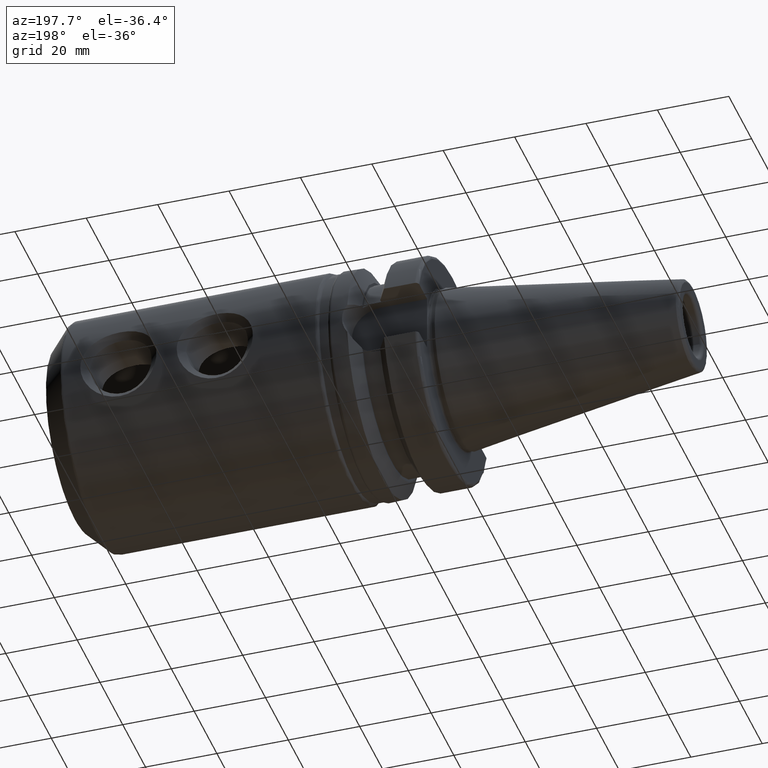
[diagram: clean part render]
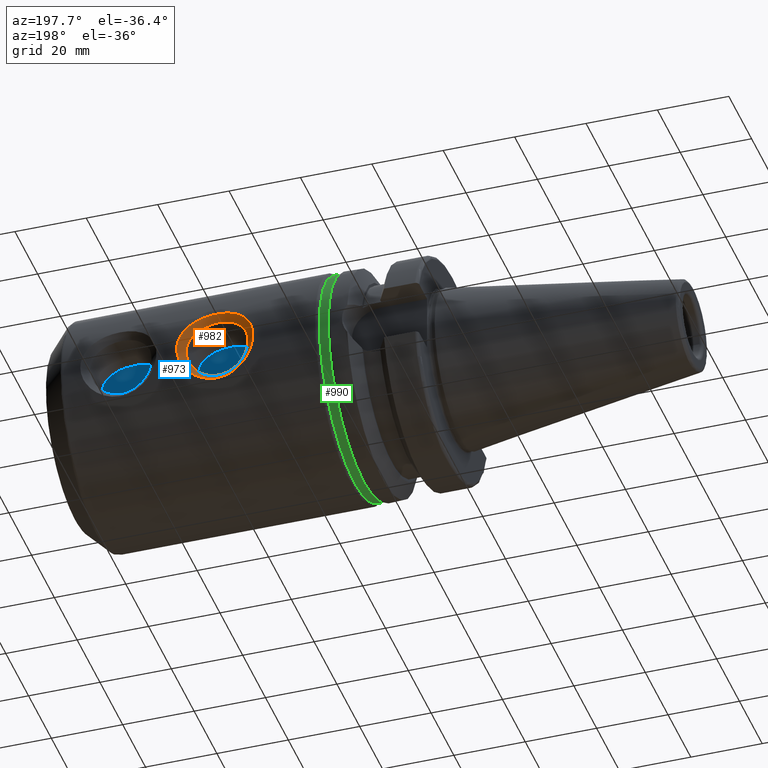
[diagram: same view with three faces highlighted in distinct colors, each labeled with its STEP entity id]
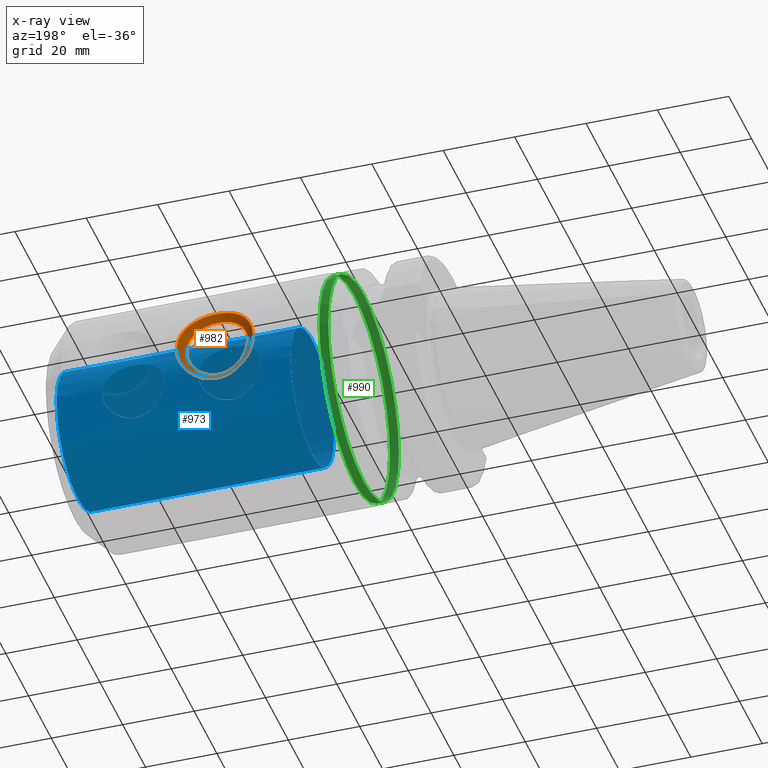
[diagram: x-ray of the same camera — body ghosted, the three highlighted faces saturated]
A machine part, auxiliary view with three faces highlighted in distinct colors.
The next image is the same camera in x-ray (body ghosted, the three faces saturated) — at least one of them is partly hidden behind the body in this view.
Their STEP definitions:

[orange] entity #982 — the highlighted face is a freeform B-spline surface patch.
#20=B_SPLINE_SURFACE_WITH_KNOTS('',3,3,((#1933,#1934,#1935,#1936,#1937,
#1938,#1939,#1940,#1941,#1942,#1943,#1944,#1945,#1946,#1947,#1948,#1949,
#1950,#1951,#1952,#1953,#1954,#1955,#1956,#1957,#1958,#1959,#1960,#1961,
#1962,#1963,#1964,#1965),(#1966,#1967,#1968,#1969,#1970,#1971,#1972,#1973,
#1974,#1975,#1976,#1977,#1978,#1979,#1980,#1981,#1982,#1983,#1984,#1985,
#1986,#1987,#1988,#1989,#1990,#1991,#1992,#1993,#1994,#1995,#1996,#1997,
#1998),(#1999,#2000,#2001,#2002,#2003,#2004,#2005,#2006,#2007,#2008,#2009,
#2010,#2011,#2012,#2013,#2014,#2015,#2016,#2017,#2018,#2019,#2020,#2021,
#2022,#2023,#2024,#2025,#2026,#2027,#2028,#2029,#2030,#2031),(#2032,#2033,
#2034,#2035,#2036,#2037,#2038,#2039,#2040,#2041,#2042,#2043,#2044,#2045,
#2046,#2047,#2048,#2049,#2050,#2051,#2052,#2053,#2054,#2055,#2056,#2057,
#2058,#2059,#2060,#2061,#2062,#2063,#2064)),.UNSPECIFIED.,.F.,.T.,.F.,(4,
4),(4,1,1,1,1,1,1,1,1,1,1,1,1,1,1,1,1,1,1,1,1,1,1,1,1,1,1,1,1,1,4),(0.,
1.),(3.93676515653178,4.12423016398568,4.31169517143957,4.49916017889347,
4.68662518634736,4.87409019380126,5.06155520125515,5.43648521616294,5.6864385594348,
5.93639190270666,5.96763607061564,6.06136857434259,6.18634524597852,6.43629858925038,
6.49878692506834,6.68625193252224,6.9362052757941,7.18615861906596,7.26426903883841,
7.31113529070189,7.43611196233782,7.68606530560967,7.8110419772456,7.93601864888153,
8.18597199215339,8.43592533542525,8.62339034287915,8.67025659474262,8.81085535033304,
8.99832035778694,9.18578536524083),.UNSPECIFIED.);
#44=B_SPLINE_CURVE_WITH_KNOTS('',3,(#1704,#1705,#1706,#1707,#1708,#1709,
#1710,#1711,#1712,#1713,#1714,#1715,#1716,#1717,#1718,#1719,#1720,#1721,
#1722,#1723,#1724,#1725,#1726,#1727,#1728,#1729,#1730,#1731,#1732,#1733,
#1734,#1735,#1736),.UNSPECIFIED.,.T.,.F.,(4,1,1,1,1,1,1,1,1,1,1,1,1,1,1,
1,1,1,1,1,1,1,1,1,1,1,1,1,1,1,4),(-9.18578536524083,-8.99832035778694,-8.81085535033304,
-8.67025659474262,-8.62339034287915,-8.43592533542525,-8.18597199215339,
-7.93601864888153,-7.8110419772456,-7.68606530560967,-7.43611196233782,
-7.31113529070189,-7.26426903883841,-7.18615861906596,-6.9362052757941,
-6.68625193252224,-6.49878692506834,-6.43629858925038,-6.18634524597852,
-6.06136857434259,-5.96763607061564,-5.93639190270666,-5.6864385594348,
-5.43648521616294,-5.06155520125515,-4.87409019380126,-4.68662518634736,
-4.49916017889347,-4.31169517143957,-4.12423016398568,-3.93676515653178),
 .UNSPECIFIED.);
#49=B_SPLINE_CURVE_WITH_KNOTS('',3,(#2067,#2068,#2069,#2070,#2071,#2072,
#2073,#2074,#2075,#2076,#2077,#2078,#2079,#2080,#2081,#2082,#2083,#2084,
#2085,#2086,#2087,#2088,#2089,#2090,#2091,#2092,#2093,#2094,#2095,#2096,
#2097,#2098,#2099),.UNSPECIFIED.,.T.,.F.,(4,1,1,1,1,1,1,1,1,1,1,1,1,1,1,
1,1,1,1,1,1,1,1,1,1,1,1,1,1,1,4),(3.93676515653178,4.12423016398568,4.31169517143957,
4.49916017889347,4.68662518634736,4.87409019380126,5.06155520125515,5.43648521616294,
5.6864385594348,5.93639190270666,5.96763607061564,6.06136857434259,6.18634524597852,
6.43629858925038,6.49878692506834,6.68625193252224,6.9362052757941,7.18615861906596,
7.26426903883841,7.31113529070189,7.43611196233782,7.68606530560967,7.8110419772456,
7.93601864888153,8.18597199215339,8.43592533542525,8.62339034287915,8.67025659474262,
8.81085535033304,8.99832035778694,9.18578536524083),.UNSPECIFIED.);
#70=LINE('',#2066,#124);
#124=VECTOR('',#1245,10.);
#225=FACE_OUTER_BOUND('',#288,.T.);
#288=EDGE_LOOP('',(#729,#730,#731,#732));
#429=VERTEX_POINT('',#1703);
#438=VERTEX_POINT('',#2065);
#537=EDGE_CURVE('',#429,#429,#44,.T.);
#550=EDGE_CURVE('',#429,#438,#70,.T.);
#551=EDGE_CURVE('',#438,#438,#49,.T.);
#729=ORIENTED_EDGE('',*,*,#550,.T.);
#730=ORIENTED_EDGE('',*,*,#551,.T.);
#731=ORIENTED_EDGE('',*,*,#550,.F.);
#732=ORIENTED_EDGE('',*,*,#537,.T.);
#982=ADVANCED_FACE('',(#225),#20,.T.);
#1245=DIRECTION('',(-0.707106781186549,-0.707106781186546,1.96261557335471E-16));
#1703=CARTESIAN_POINT('',(69.2114,31.75,-1.02695629777827E-14));
#1704=CARTESIAN_POINT('Ctrl Pts',(69.2114,31.75,-1.02695629777827E-14));
#1705=CARTESIAN_POINT('Ctrl Pts',(69.2114,31.75,-0.769174894924273));
#1706=CARTESIAN_POINT('Ctrl Pts',(69.0411648002096,31.6920900672666,-2.36565315573937));
#1707=CARTESIAN_POINT('Ctrl Pts',(68.2966047714104,31.4511306857634,-4.4870374417718));
#1708=CARTESIAN_POINT('Ctrl Pts',(67.4711248000113,31.2088012229449,-5.86611673350835));
#1709=CARTESIAN_POINT('Ctrl Pts',(66.5161423720974,30.9510126437963,-7.11338716194649));
#1710=CARTESIAN_POINT('Ctrl Pts',(65.1379798727596,30.6127378472617,-8.48515347919251));
#1711=CARTESIAN_POINT('Ctrl Pts',(62.5381890382162,30.1435278222658,-9.99842563499394));
#1712=CARTESIAN_POINT('Ctrl Pts',(59.8419368120691,29.9348485814149,-10.5782728011103));
#1713=CARTESIAN_POINT('Ctrl Pts',(57.7776570454228,29.9366595280267,-10.5768794915431));
#1714=CARTESIAN_POINT('Ctrl Pts',(55.6415868765256,30.0428083358393,-10.2735824644748));
#1715=CARTESIAN_POINT('Ctrl Pts',(53.5848618293784,30.3122614987011,-9.47661342242273));
#1716=CARTESIAN_POINT('Ctrl Pts',(52.1034328514561,30.6025074703987,-8.46924285225713));
#1717=CARTESIAN_POINT('Ctrl Pts',(51.31080002298,30.7779153516422,-7.80283804004793));
#1718=CARTESIAN_POINT('Ctrl Pts',(50.2312695555816,31.0354515061626,-6.75325181760169));
#1719=CARTESIAN_POINT('Ctrl Pts',(48.8009036992679,31.4461303962422,-4.72587884126023));
#1720=CARTESIAN_POINT('Ctrl Pts',(47.9208773862064,31.739400425206,-1.81376658324547));
#1721=CARTESIAN_POINT('Ctrl Pts',(47.851134360239,31.7623125424088,0.253975041980342));
#1722=CARTESIAN_POINT('Ctrl Pts',(48.0779410313383,31.6868806325059,2.34850468918307));
#1723=CARTESIAN_POINT('Ctrl Pts',(48.6437672782173,31.4989623678085,4.19389087482805));
#1724=CARTESIAN_POINT('Ctrl Pts',(49.6571701070764,31.2003912165333,5.91974383362027));
#1725=CARTESIAN_POINT('Ctrl Pts',(50.302738106597,31.0265688759785,6.74853966405098));
#1726=CARTESIAN_POINT('Ctrl Pts',(51.3262809024771,30.7684543750892,7.87663942876634));
#1727=CARTESIAN_POINT('Ctrl Pts',(53.0592633158841,30.3805120861574,9.276990058038));
#1728=CARTESIAN_POINT('Ctrl Pts',(56.6941025060959,29.9073486985345,10.6670264458728));
#1729=CARTESIAN_POINT('Ctrl Pts',(60.1367938722789,29.910549105492,10.6555817277004));
#1730=CARTESIAN_POINT('Ctrl Pts',(63.2675118993168,30.2701793667834,9.60483472580029));
#1731=CARTESIAN_POINT('Ctrl Pts',(65.3113639471104,30.6563621488303,8.30409495791635));
#1732=CARTESIAN_POINT('Ctrl Pts',(66.9225442519267,31.0499058772538,6.71633341774999));
#1733=CARTESIAN_POINT('Ctrl Pts',(68.2334740143491,31.4300626029509,4.67854526413355));
#1734=CARTESIAN_POINT('Ctrl Pts',(69.0386215844319,31.6915845105009,2.3666632871303));
#1735=CARTESIAN_POINT('Ctrl Pts',(69.2114,31.75,0.769174894924226));
#1736=CARTESIAN_POINT('Ctrl Pts',(69.2114,31.75,-9.71445146547012E-15));
#1933=CARTESIAN_POINT('Ctrl Pts',(69.2114,31.75,-9.71445146547012E-15));
#1934=CARTESIAN_POINT('Ctrl Pts',(69.2114,31.75,0.769174894924226));
#1935=CARTESIAN_POINT('Ctrl Pts',(69.0386215844319,31.6915845105009,2.3666632871303));
#1936=CARTESIAN_POINT('Ctrl Pts',(68.2334740143491,31.4300626029509,4.67854526413355));
#1937=CARTESIAN_POINT('Ctrl Pts',(66.9225442519267,31.0499058772538,6.71633341774999));
#1938=CARTESIAN_POINT('Ctrl Pts',(65.3113639471104,30.6563621488303,8.30409495791635));
#1939=CARTESIAN_POINT('Ctrl Pts',(63.2675118993168,30.2701793667834,9.60483472580029));
#1940=CARTESIAN_POINT('Ctrl Pts',(60.1367938722789,29.910549105492,10.6555817277004));
#1941=CARTESIAN_POINT('Ctrl Pts',(56.6941025060959,29.9073486985345,10.6670264458728));
#1942=CARTESIAN_POINT('Ctrl Pts',(53.0592633158841,30.3805120861574,9.276990058038));
#1943=CARTESIAN_POINT('Ctrl Pts',(51.3262809024771,30.7684543750892,7.87663942876634));
#1944=CARTESIAN_POINT('Ctrl Pts',(50.302738106597,31.0265688759785,6.74853966405098));
#1945=CARTESIAN_POINT('Ctrl Pts',(49.6571701070764,31.2003912165333,5.91974383362027));
#1946=CARTESIAN_POINT('Ctrl Pts',(48.6437672782173,31.4989623678085,4.19389087482805));
#1947=CARTESIAN_POINT('Ctrl Pts',(48.0779410313383,31.6868806325059,2.34850468918307));
#1948=CARTESIAN_POINT('Ctrl Pts',(47.851134360239,31.7623125424088,0.253975041980342));
#1949=CARTESIAN_POINT('Ctrl Pts',(47.9208773862064,31.739400425206,-1.81376658324547));
#1950=CARTESIAN_POINT('Ctrl Pts',(48.8009036992679,31.4461303962422,-4.72587884126023));
#1951=CARTESIAN_POINT('Ctrl Pts',(50.2312695555816,31.0354515061626,-6.75325181760169));
#1952=CARTESIAN_POINT('Ctrl Pts',(51.31080002298,30.7779153516422,-7.80283804004793));
#1953=CARTESIAN_POINT('Ctrl Pts',(52.1034328514561,30.6025074703987,-8.46924285225713));
#1954=CARTESIAN_POINT('Ctrl Pts',(53.5848618293784,30.3122614987011,-9.47661342242273));
#1955=CARTESIAN_POINT('Ctrl Pts',(55.6415868765256,30.0428083358393,-10.2735824644748));
#1956=CARTESIAN_POINT('Ctrl Pts',(57.7776570454228,29.9366595280267,-10.5768794915431));
#1957=CARTESIAN_POINT('Ctrl Pts',(59.8419368120691,29.9348485814149,-10.5782728011103));
#1958=CARTESIAN_POINT('Ctrl Pts',(62.5381890382162,30.1435278222658,-9.99842563499394));
#1959=CARTESIAN_POINT('Ctrl Pts',(65.1379798727596,30.6127378472617,-8.48515347919251));
#1960=CARTESIAN_POINT('Ctrl Pts',(66.5161423720974,30.9510126437963,-7.11338716194649));
#1961=CARTESIAN_POINT('Ctrl Pts',(67.4711248000113,31.2088012229449,-5.86611673350835));
#1962=CARTESIAN_POINT('Ctrl Pts',(68.2966047714104,31.4511306857634,-4.4870374417718));
#1963=CARTESIAN_POINT('Ctrl Pts',(69.0411648002096,31.6920900672666,-2.36565315573937));
#1964=CARTESIAN_POINT('Ctrl Pts',(69.2114,31.75,-0.769174894924273));
#1965=CARTESIAN_POINT('Ctrl Pts',(69.2114,31.75,-1.02695629777827E-14));
#1966=CARTESIAN_POINT('Ctrl Pts',(68.5447333333333,31.0833333333334,-9.52941429469926E-15));
#1967=CARTESIAN_POINT('Ctrl Pts',(68.5447333333333,31.0833333333334,0.707956805601391));
#1968=CARTESIAN_POINT('Ctrl Pts',(68.3886081120309,31.0323909796389,2.17831092663724));
#1969=CARTESIAN_POINT('Ctrl Pts',(67.657442000281,30.8034368914202,4.32029885495128));
#1970=CARTESIAN_POINT('Ctrl Pts',(66.4533978310627,30.4680445589283,6.2316337068312));
#1971=CARTESIAN_POINT('Ctrl Pts',(64.9561048288896,30.1181502221541,7.74113651092647));
#1972=CARTESIAN_POINT('Ctrl Pts',(63.0356374244672,29.7725607580013,8.99332814524676));
#1973=CARTESIAN_POINT('Ctrl Pts',(60.0660734570953,29.4488187842949,10.0177736618751));
#1974=CARTESIAN_POINT('Ctrl Pts',(56.7765618061726,29.4459754180335,10.0287088180743));
#1975=CARTESIAN_POINT('Ctrl Pts',(53.3324920430559,29.8717887838444,8.67427007332582));
#1976=CARTESIAN_POINT('Ctrl Pts',(51.7137831108872,30.2179432182848,7.33346231264291));
#1977=CARTESIAN_POINT('Ctrl Pts',(50.7647473612287,30.446974481188,6.265456570831));
#1978=CARTESIAN_POINT('Ctrl Pts',(50.1685272226987,30.6008595422175,5.48411904247739));
#1979=CARTESIAN_POINT('Ctrl Pts',(49.2392582567057,30.863953676651,3.86910994497655));
#1980=CARTESIAN_POINT('Ctrl Pts',(48.7266181157045,31.0282303876115,2.16250130924031));
#1981=CARTESIAN_POINT('Ctrl Pts',(48.5213092046693,31.0940886185222,0.233383836685848));
#1982=CARTESIAN_POINT('Ctrl Pts',(48.5844825620817,31.0740974438736,-1.66819352212119));
#1983=CARTESIAN_POINT('Ctrl Pts',(49.3813434946606,30.8178407094487,-4.36081864637296));
#1984=CARTESIAN_POINT('Ctrl Pts',(50.6964209996272,30.4551808379212,-6.26757312608119));
#1985=CARTESIAN_POINT('Ctrl Pts',(51.7007935801897,30.226112491199,-7.26528343703993));
#1986=CARTESIAN_POINT('Ctrl Pts',(52.4407608543787,30.0698129038492,-7.90129919602009));
#1987=CARTESIAN_POINT('Ctrl Pts',(53.8305396518413,29.8103369439832,-8.86891829603986));
#1988=CARTESIAN_POINT('Ctrl Pts',(55.7791741233888,29.5679531701305,-9.64486992371889));
#1989=CARTESIAN_POINT('Ctrl Pts',(57.8137065835703,29.4722851004591,-9.94129237121951));
#1990=CARTESIAN_POINT('Ctrl Pts',(59.781647471484,29.4706095675761,-9.94300655187194));
#1991=CARTESIAN_POINT('Ctrl Pts',(62.3481684669487,29.6588618996781,-9.37480144741525));
#1992=CARTESIAN_POINT('Ctrl Pts',(64.795368441628,30.0794375976417,-7.91289217209238));
#1993=CARTESIAN_POINT('Ctrl Pts',(66.0756037702344,30.3800948076984,-6.60925946861327));
#1994=CARTESIAN_POINT('Ctrl Pts',(66.9573311923376,30.6082443581661,-5.43409532276694));
#1995=CARTESIAN_POINT('Ctrl Pts',(67.7145902518935,30.8218546032687,-4.14300759381004));
#1996=CARTESIAN_POINT('Ctrl Pts',(68.3910310684137,31.0328513993322,-2.17727973131047));
#1997=CARTESIAN_POINT('Ctrl Pts',(68.5447333333333,31.0833333333334,-0.707956805601422));
#1998=CARTESIAN_POINT('Ctrl Pts',(68.5447333333333,31.0833333333334,-9.80697005085555E-15));
#1999=CARTESIAN_POINT('Ctrl Pts',(67.8780666666667,30.4166666666667,-9.3443771239284E-15));
#2000=CARTESIAN_POINT('Ctrl Pts',(67.8780666666667,30.4166666666667,0.646738716278555));
#2001=CARTESIAN_POINT('Ctrl Pts',(67.7385946396299,30.3731974487769,1.98995856614417));
#2002=CARTESIAN_POINT('Ctrl Pts',(67.0814099862129,30.1768111798895,3.962052445769));
#2003=CARTESIAN_POINT('Ctrl Pts',(65.9842514101986,29.8861832406029,5.74693399591242));
#2004=CARTESIAN_POINT('Ctrl Pts',(64.6008457106688,29.579938295478,7.17817806393659));
#2005=CARTESIAN_POINT('Ctrl Pts',(62.8037629496176,29.2749421492191,8.38182156469322));
#2006=CARTESIAN_POINT('Ctrl Pts',(59.9953530419116,28.9870884630979,9.37996559604971));
#2007=CARTESIAN_POINT('Ctrl Pts',(56.8590211062492,28.9846021375324,9.39039119027577));
#2008=CARTESIAN_POINT('Ctrl Pts',(53.6057207702278,29.3630654815315,8.07155008861364));
#2009=CARTESIAN_POINT('Ctrl Pts',(52.1012853192973,29.6674320614804,6.79028519651949));
#2010=CARTESIAN_POINT('Ctrl Pts',(51.2267566158603,29.8673800863974,5.78237347761102));
#2011=CARTESIAN_POINT('Ctrl Pts',(50.6798843383211,30.0013278679017,5.04849425133452));
#2012=CARTESIAN_POINT('Ctrl Pts',(49.8347492351941,30.2289449854936,3.54432901512506));
#2013=CARTESIAN_POINT('Ctrl Pts',(49.3752952000707,30.3695801427171,1.97649792929755));
#2014=CARTESIAN_POINT('Ctrl Pts',(49.1914840490996,30.4258646946356,0.212792631391354));
#2015=CARTESIAN_POINT('Ctrl Pts',(49.248087737957,30.4087944625412,-1.52262046099692));
#2016=CARTESIAN_POINT('Ctrl Pts',(49.9617832900533,30.1895510226553,-3.99575845148569));
#2017=CARTESIAN_POINT('Ctrl Pts',(51.1615724436728,29.8749101696798,-5.78189443456069));
#2018=CARTESIAN_POINT('Ctrl Pts',(52.0907871373994,29.6743096307558,-6.72772883403193));
#2019=CARTESIAN_POINT('Ctrl Pts',(52.7780888573012,29.5371183372998,-7.33335553978306));
#2020=CARTESIAN_POINT('Ctrl Pts',(54.0762174743042,29.3084123892653,-8.26122316965698));
#2021=CARTESIAN_POINT('Ctrl Pts',(55.9167613702519,29.0930980044217,-9.01615738296302));
#2022=CARTESIAN_POINT('Ctrl Pts',(57.8497561217178,29.0079106728915,-9.30570525089588));
#2023=CARTESIAN_POINT('Ctrl Pts',(59.7213581308989,29.0063705537374,-9.30774030263355));
#2024=CARTESIAN_POINT('Ctrl Pts',(62.1581478956812,29.1741959770904,-8.75117725983657));
#2025=CARTESIAN_POINT('Ctrl Pts',(64.4527570104965,29.5461373480216,-7.34063086499225));
#2026=CARTESIAN_POINT('Ctrl Pts',(65.6350651683714,29.8091769716004,-6.10513177528005));
#2027=CARTESIAN_POINT('Ctrl Pts',(66.4435375846638,30.0076874933874,-5.00207391202554));
#2028=CARTESIAN_POINT('Ctrl Pts',(67.1325757323765,30.192578520774,-3.79897774584827));
#2029=CARTESIAN_POINT('Ctrl Pts',(67.7408973366178,30.3736127313977,-1.98890630688158));
#2030=CARTESIAN_POINT('Ctrl Pts',(67.8780666666667,30.4166666666667,-0.64673871627857));
#2031=CARTESIAN_POINT('Ctrl Pts',(67.8780666666667,30.4166666666667,-9.3443771239284E-15));
#2032=CARTESIAN_POINT('Ctrl Pts',(67.2114,29.75,-9.15933995315754E-15));
#2033=CARTESIAN_POINT('Ctrl Pts',(67.2114,29.75,0.58552062695572));
#2034=CARTESIAN_POINT('Ctrl Pts',(67.088581167229,29.714003917915,1.80160620565111));
#2035=CARTESIAN_POINT('Ctrl Pts',(66.5053779721448,29.5501854683588,3.60380603658673));
#2036=CARTESIAN_POINT('Ctrl Pts',(65.5151049893346,29.3043219222775,5.26223428499364));
#2037=CARTESIAN_POINT('Ctrl Pts',(64.245586592448,29.0417263688018,6.61521961694672));
#2038=CARTESIAN_POINT('Ctrl Pts',(62.5718884747681,28.777323540437,7.77031498413968));
#2039=CARTESIAN_POINT('Ctrl Pts',(59.9246326267279,28.5253581419009,8.74215753022436));
#2040=CARTESIAN_POINT('Ctrl Pts',(56.941480406326,28.5232288570313,8.75207356247725));
#2041=CARTESIAN_POINT('Ctrl Pts',(53.8789494973996,28.8543421792186,7.46883010390146));
#2042=CARTESIAN_POINT('Ctrl Pts',(52.4887875277074,29.1169209046761,6.24710808039606));
#2043=CARTESIAN_POINT('Ctrl Pts',(51.6887658704919,29.2877856916069,5.29929038439105));
#2044=CARTESIAN_POINT('Ctrl Pts',(51.1912414539435,29.4017961935859,4.61286946019165));
#2045=CARTESIAN_POINT('Ctrl Pts',(50.4302402136826,29.5939362943361,3.21954808527356));
#2046=CARTESIAN_POINT('Ctrl Pts',(50.0239722844369,29.7109298978227,1.7904945493548));
#2047=CARTESIAN_POINT('Ctrl Pts',(49.8616588935299,29.757640770749,0.19220142609686));
#2048=CARTESIAN_POINT('Ctrl Pts',(49.9116929138323,29.7434914812089,-1.37704739987264));
#2049=CARTESIAN_POINT('Ctrl Pts',(50.5422230854461,29.5612613358618,-3.63069825659843));
#2050=CARTESIAN_POINT('Ctrl Pts',(51.6267238877185,29.2946395014384,-5.29621574304019));
#2051=CARTESIAN_POINT('Ctrl Pts',(52.4807806946091,29.1225067703127,-6.19017423102393));
#2052=CARTESIAN_POINT('Ctrl Pts',(53.1154168602237,29.0044237707503,-6.76541188354602));
#2053=CARTESIAN_POINT('Ctrl Pts',(54.3218952967671,28.8064878345474,-7.65352804327411));
#2054=CARTESIAN_POINT('Ctrl Pts',(56.0543486171151,28.6182428387129,-8.38744484220715));
#2055=CARTESIAN_POINT('Ctrl Pts',(57.8858056598653,28.5435362453239,-8.67011813057225));
#2056=CARTESIAN_POINT('Ctrl Pts',(59.6610687903137,28.5421315398987,-8.67247405339517));
#2057=CARTESIAN_POINT('Ctrl Pts',(61.9681273244138,28.6895300545027,-8.12755307225789));
#2058=CARTESIAN_POINT('Ctrl Pts',(64.110145579365,29.0128370984016,-6.76836955789213));
#2059=CARTESIAN_POINT('Ctrl Pts',(65.1945265665085,29.2382591355024,-5.60100408194683));
#2060=CARTESIAN_POINT('Ctrl Pts',(65.92974397699,29.4071306286086,-4.57005250128413));
#2061=CARTESIAN_POINT('Ctrl Pts',(66.5505612128595,29.5633024382793,-3.4549478978865));
#2062=CARTESIAN_POINT('Ctrl Pts',(67.0907636048219,29.7143740634633,-1.80053288245268));
#2063=CARTESIAN_POINT('Ctrl Pts',(67.2114,29.75,-0.585520626955719));
#2064=CARTESIAN_POINT('Ctrl Pts',(67.2114,29.75,-8.88178419700125E-15));
#2065=CARTESIAN_POINT('',(67.2114,29.75,-9.15933995315754E-15));
#2066=CARTESIAN_POINT('',(69.2114,31.75,-9.71445146547012E-15));
#2067=CARTESIAN_POINT('Ctrl Pts',(67.2114,29.75,-9.15933995315754E-15));
#2068=CARTESIAN_POINT('Ctrl Pts',(67.2114,29.75,0.58552062695572));
#2069=CARTESIAN_POINT('Ctrl Pts',(67.088581167229,29.714003917915,1.80160620565111));
#2070=CARTESIAN_POINT('Ctrl Pts',(66.5053779721448,29.5501854683588,3.60380603658673));
#2071=CARTESIAN_POINT('Ctrl Pts',(65.5151049893346,29.3043219222775,5.26223428499364));
#2072=CARTESIAN_POINT('Ctrl Pts',(64.245586592448,29.0417263688018,6.61521961694672));
#2073=CARTESIAN_POINT('Ctrl Pts',(62.5718884747681,28.777323540437,7.77031498413968));
#2074=CARTESIAN_POINT('Ctrl Pts',(59.9246326267279,28.5253581419009,8.74215753022436));
#2075=CARTESIAN_POINT('Ctrl Pts',(56.941480406326,28.5232288570313,8.75207356247725));
#2076=CARTESIAN_POINT('Ctrl Pts',(53.8789494973996,28.8543421792186,7.46883010390146));
#2077=CARTESIAN_POINT('Ctrl Pts',(52.4887875277074,29.1169209046761,6.24710808039606));
#2078=CARTESIAN_POINT('Ctrl Pts',(51.6887658704919,29.2877856916069,5.29929038439105));
#2079=CARTESIAN_POINT('Ctrl Pts',(51.1912414539435,29.4017961935859,4.61286946019165));
#2080=CARTESIAN_POINT('Ctrl Pts',(50.4302402136826,29.5939362943361,3.21954808527356));
#2081=CARTESIAN_POINT('Ctrl Pts',(50.0239722844369,29.7109298978227,1.7904945493548));
#2082=CARTESIAN_POINT('Ctrl Pts',(49.8616588935299,29.757640770749,0.19220142609686));
#2083=CARTESIAN_POINT('Ctrl Pts',(49.9116929138323,29.7434914812089,-1.37704739987264));
#2084=CARTESIAN_POINT('Ctrl Pts',(50.5422230854461,29.5612613358618,-3.63069825659843));
#2085=CARTESIAN_POINT('Ctrl Pts',(51.6267238877185,29.2946395014384,-5.29621574304019));
#2086=CARTESIAN_POINT('Ctrl Pts',(52.4807806946091,29.1225067703127,-6.19017423102393));
#2087=CARTESIAN_POINT('Ctrl Pts',(53.1154168602237,29.0044237707503,-6.76541188354602));
#2088=CARTESIAN_POINT('Ctrl Pts',(54.3218952967671,28.8064878345474,-7.65352804327411));
#2089=CARTESIAN_POINT('Ctrl Pts',(56.0543486171151,28.6182428387129,-8.38744484220715));
#2090=CARTESIAN_POINT('Ctrl Pts',(57.8858056598653,28.5435362453239,-8.67011813057225));
#2091=CARTESIAN_POINT('Ctrl Pts',(59.6610687903137,28.5421315398987,-8.67247405339517));
#2092=CARTESIAN_POINT('Ctrl Pts',(61.9681273244138,28.6895300545027,-8.12755307225789));
#2093=CARTESIAN_POINT('Ctrl Pts',(64.110145579365,29.0128370984016,-6.76836955789213));
#2094=CARTESIAN_POINT('Ctrl Pts',(65.1945265665085,29.2382591355024,-5.60100408194683));
#2095=CARTESIAN_POINT('Ctrl Pts',(65.92974397699,29.4071306286086,-4.57005250128413));
#2096=CARTESIAN_POINT('Ctrl Pts',(66.5505612128595,29.5633024382793,-3.4549478978865));
#2097=CARTESIAN_POINT('Ctrl Pts',(67.0907636048219,29.7143740634633,-1.80053288245268));
#2098=CARTESIAN_POINT('Ctrl Pts',(67.2114,29.75,-0.585520626955719));
#2099=CARTESIAN_POINT('Ctrl Pts',(67.2114,29.75,-8.88178419700125E-15));

[blue] entity #973 — the highlighted cylindrical surface (bore or boss wall) has radius 19.05 mm, axis along (1, 0, 0).
#33=B_SPLINE_CURVE_WITH_KNOTS('',3,(#1487,#1488,#1489,#1490,#1491,#1492,
#1493,#1494,#1495,#1496),.UNSPECIFIED.,.F.,.F.,(4,2,2,2,4),(0.338513943379091,
0.36661429326243,0.394714643145768,0.423033283825612,0.451351924505455),
 .UNSPECIFIED.);
#34=B_SPLINE_CURVE_WITH_KNOTS('',3,(#1498,#1499,#1500,#1501,#1502,#1503,
#1504,#1505,#1506,#1507),.UNSPECIFIED.,.F.,.F.,(4,2,2,2,4),(0.,0.0283186406798433,
0.0566372813596865,0.084737631243025,0.112837981126364),.UNSPECIFIED.);
#35=B_SPLINE_CURVE_WITH_KNOTS('',3,(#1511,#1512,#1513,#1514,#1515,#1516,
#1517,#1518,#1519,#1520),.UNSPECIFIED.,.F.,.F.,(4,2,2,2,4),(0.33851394337909,
0.366614293262428,0.394714643145767,0.42303328382561,0.451351924505453),
 .UNSPECIFIED.);
#36=B_SPLINE_CURVE_WITH_KNOTS('',3,(#1522,#1523,#1524,#1525,#1526,#1527,
#1528,#1529,#1530,#1531),.UNSPECIFIED.,.F.,.F.,(4,2,2,2,4),(0.,0.0283186406798428,
0.0566372813596857,0.0847376312430243,0.112837981126363),.UNSPECIFIED.);
#37=B_SPLINE_CURVE_WITH_KNOTS('',3,(#1535,#1536,#1537,#1538,#1539,#1540,
#1541,#1542,#1543,#1544,#1545,#1546,#1547,#1548,#1549,#1550,#1551,#1552),
 .UNSPECIFIED.,.F.,.F.,(4,2,2,2,2,2,2,2,4),(0.112837981126363,0.140938331009702,
0.16903868089304,0.197357321572884,0.225675962252727,0.25399460293257,0.282313243612413,
0.310413593495751,0.33851394337909),.UNSPECIFIED.);
#38=B_SPLINE_CURVE_WITH_KNOTS('',3,(#1553,#1554,#1555,#1556,#1557,#1558,
#1559,#1560,#1561,#1562,#1563,#1564,#1565,#1566,#1567,#1568,#1569,#1570),
 .UNSPECIFIED.,.F.,.F.,(4,2,2,2,2,2,2,2,4),(0.112837981126364,0.140938331009702,
0.169038680893041,0.197357321572884,0.225675962252727,0.253994602932571,
0.282313243612414,0.310413593495753,0.338513943379091),.UNSPECIFIED.);
#39=B_SPLINE_CURVE_WITH_KNOTS('',3,(#1573,#1574,#1575,#1576,#1577,#1578,
#1579,#1580,#1581,#1582),.UNSPECIFIED.,.F.,.F.,(4,2,2,2,4),(0.,0.331934523882445,
0.663869047764891,0.995214124430525,1.32655920109616),.UNSPECIFIED.);
#40=B_SPLINE_CURVE_WITH_KNOTS('',3,(#1583,#1584,#1585,#1586,#1587,#1588,
#1589,#1590,#1591,#1592,#1593,#1594,#1595,#1596,#1597,#1598,#1599,#1600,
#1601,#1602,#1603,#1604,#1605,#1606,#1607,#1608),.UNSPECIFIED.,.F.,.F.,
(4,2,2,2,2,2,2,2,2,2,2,2,4),(1.32655920109616,1.65790427776179,1.98924935442743,
2.32118387830987,2.65311840219232,2.98505292607476,3.31698744995721,3.64833252662284,
3.97967760328848,4.31102267995411,4.64236775661974,4.97430228050219,5.30623680438464),
 .UNSPECIFIED.);
#41=B_SPLINE_CURVE_WITH_KNOTS('',3,(#1611,#1612,#1613,#1614,#1615,#1616,
#1617,#1618,#1619,#1620),.UNSPECIFIED.,.F.,.F.,(4,2,2,2,4),(0.,0.331934523882446,
0.663869047764891,0.995214124430525,1.32655920109616),.UNSPECIFIED.);
#42=B_SPLINE_CURVE_WITH_KNOTS('',3,(#1621,#1622,#1623,#1624,#1625,#1626,
#1627,#1628,#1629,#1630,#1631,#1632,#1633,#1634,#1635,#1636,#1637,#1638,
#1639,#1640,#1641,#1642,#1643,#1644,#1645,#1646),.UNSPECIFIED.,.F.,.F.,
(4,2,2,2,2,2,2,2,2,2,2,2,4),(1.32655920109616,1.65790427776179,1.98924935442743,
2.32118387830987,2.65311840219232,2.98505292607476,3.31698744995721,3.64833252662284,
3.97967760328848,4.31102267995411,4.64236775661974,4.97430228050219,5.30623680438464),
 .UNSPECIFIED.);
#62=LINE('',#1485,#116);
#63=LINE('',#1509,#117);
#64=LINE('',#1533,#118);
#116=VECTOR('',#1191,19.05);
#117=VECTOR('',#1192,19.05);
#118=VECTOR('',#1193,19.05);
#170=CYLINDRICAL_SURFACE('',#1059,19.05);
#189=FACE_BOUND('',#276,.T.);
#190=FACE_BOUND('',#277,.T.);
#216=FACE_OUTER_BOUND('',#275,.T.);
#275=EDGE_LOOP('',(#664,#665,#666,#667,#668,#669,#670,#671,#672,#673,#674,
#675,#676,#677,#678));
#276=EDGE_LOOP('',(#679,#680));
#277=EDGE_LOOP('',(#681,#682));
#340=CIRCLE('',#1053,19.05);
#341=CIRCLE('',#1054,19.05);
#345=CIRCLE('',#1060,19.05);
#405=VERTEX_POINT('',#1473);
#406=VERTEX_POINT('',#1474);
#409=VERTEX_POINT('',#1484);
#410=VERTEX_POINT('',#1486);
#411=VERTEX_POINT('',#1497);
#412=VERTEX_POINT('',#1508);
#413=VERTEX_POINT('',#1510);
#414=VERTEX_POINT('',#1521);
#415=VERTEX_POINT('',#1532);
#416=VERTEX_POINT('',#1571);
#417=VERTEX_POINT('',#1572);
#418=VERTEX_POINT('',#1609);
#419=VERTEX_POINT('',#1610);
#505=EDGE_CURVE('',#405,#406,#340,.T.);
#506=EDGE_CURVE('',#406,#405,#341,.T.);
#510=EDGE_CURVE('',#406,#409,#62,.T.);
#511=EDGE_CURVE('',#409,#410,#33,.T.);
#512=EDGE_CURVE('',#410,#411,#34,.T.);
#513=EDGE_CURVE('',#411,#412,#63,.T.);
#514=EDGE_CURVE('',#412,#413,#35,.T.);
#515=EDGE_CURVE('',#413,#414,#36,.T.);
#516=EDGE_CURVE('',#414,#415,#64,.T.);
#517=EDGE_CURVE('',#415,#415,#345,.T.);
#518=EDGE_CURVE('',#414,#412,#37,.T.);
#519=EDGE_CURVE('',#411,#409,#38,.T.);
#520=EDGE_CURVE('',#416,#417,#39,.T.);
#521=EDGE_CURVE('',#417,#416,#40,.T.);
#522=EDGE_CURVE('',#418,#419,#41,.T.);
#523=EDGE_CURVE('',#419,#418,#42,.T.);
#664=ORIENTED_EDGE('',*,*,#505,.F.);
#665=ORIENTED_EDGE('',*,*,#506,.F.);
#666=ORIENTED_EDGE('',*,*,#510,.T.);
#667=ORIENTED_EDGE('',*,*,#511,.T.);
#668=ORIENTED_EDGE('',*,*,#512,.T.);
#669=ORIENTED_EDGE('',*,*,#513,.T.);
#670=ORIENTED_EDGE('',*,*,#514,.T.);
#671=ORIENTED_EDGE('',*,*,#515,.T.);
#672=ORIENTED_EDGE('',*,*,#516,.T.);
#673=ORIENTED_EDGE('',*,*,#517,.F.);
#674=ORIENTED_EDGE('',*,*,#516,.F.);
#675=ORIENTED_EDGE('',*,*,#518,.T.);
#676=ORIENTED_EDGE('',*,*,#513,.F.);
#677=ORIENTED_EDGE('',*,*,#519,.T.);
#678=ORIENTED_EDGE('',*,*,#510,.F.);
#679=ORIENTED_EDGE('',*,*,#520,.T.);
#680=ORIENTED_EDGE('',*,*,#521,.T.);
#681=ORIENTED_EDGE('',*,*,#522,.T.);
#682=ORIENTED_EDGE('',*,*,#523,.T.);
#973=ADVANCED_FACE('',(#216,#189,#190),#170,.F.);
#1053=AXIS2_PLACEMENT_3D('',#1475,#1177,#1178);
#1054=AXIS2_PLACEMENT_3D('',#1476,#1179,#1180);
#1059=AXIS2_PLACEMENT_3D('',#1483,#1189,#1190);
#1060=AXIS2_PLACEMENT_3D('',#1534,#1194,#1195);
#1177=DIRECTION('center_axis',(-1.,0.,0.));
#1178=DIRECTION('ref_axis',(0.,-1.,1.83697019872103E-16));
#1179=DIRECTION('center_axis',(-1.,0.,0.));
#1180=DIRECTION('ref_axis',(0.,-1.,1.83697019872103E-16));
#1189=DIRECTION('center_axis',(1.,0.,0.));
#1190=DIRECTION('ref_axis',(0.,1.,0.));
#1191=DIRECTION('',(-1.,0.,0.));
#1192=DIRECTION('',(-1.,0.,0.));
#1193=DIRECTION('',(-1.,0.,0.));
#1194=DIRECTION('center_axis',(1.,0.,0.));
#1195=DIRECTION('ref_axis',(0.,0.,-1.));
#1473=CARTESIAN_POINT('',(106.95,-2.33295215237571E-15,19.05));
#1474=CARTESIAN_POINT('',(106.95,-19.05,-2.33295215237571E-15));
#1475=CARTESIAN_POINT('Origin',(106.95,0.,0.));
#1476=CARTESIAN_POINT('Origin',(106.95,0.,0.));
#1483=CARTESIAN_POINT('Origin',(74.65,0.,0.));
#1484=CARTESIAN_POINT('',(86.2861011050468,-19.05,-5.66374668765668E-15));
#1485=CARTESIAN_POINT('',(74.65,-19.05,-2.33295215237571E-15));
#1486=CARTESIAN_POINT('',(85.55,-19.0347764124365,0.761437409476391));
#1487=CARTESIAN_POINT('Ctrl Pts',(86.2861011050468,-19.05,-8.99454122294185E-15));
#1488=CARTESIAN_POINT('Ctrl Pts',(86.2861011050468,-19.05,0.093667832944453));
#1489=CARTESIAN_POINT('Ctrl Pts',(86.2683617215208,-19.0492390585762,0.193910450054286));
#1490=CARTESIAN_POINT('Ctrl Pts',(86.1953868170509,-19.0464462037062,0.379469351756547));
#1491=CARTESIAN_POINT('Ctrl Pts',(86.1401395850742,-19.0444507639042,0.464781577708418));
#1492=CARTESIAN_POINT('Ctrl Pts',(86.010847272212,-19.04063128614,0.601297931810538));
#1493=CARTESIAN_POINT('Ctrl Pts',(85.9278885009603,-19.038557512091,0.661387416935415));
#1494=CARTESIAN_POINT('Ctrl Pts',(85.7446686329403,-19.0356068354524,0.741470108355296));
#1495=CARTESIAN_POINT('Ctrl Pts',(85.6443954689328,-19.0347764124365,0.761437409476391));
#1496=CARTESIAN_POINT('Ctrl Pts',(85.55,-19.0347764124365,0.761437409476391));
#1497=CARTESIAN_POINT('',(84.8138988949533,-19.05,-5.60303136599714E-15));
#1498=CARTESIAN_POINT('Ctrl Pts',(85.55,-19.0347764124365,0.761437409476391));
#1499=CARTESIAN_POINT('Ctrl Pts',(85.4556045310672,-19.0347764124365,0.761437409476391));
#1500=CARTESIAN_POINT('Ctrl Pts',(85.3553313670597,-19.0356068354524,0.741470108355296));
#1501=CARTESIAN_POINT('Ctrl Pts',(85.1721114990397,-19.038557512091,0.661387416935405));
#1502=CARTESIAN_POINT('Ctrl Pts',(85.089152727788,-19.04063128614,0.601297931810536));
#1503=CARTESIAN_POINT('Ctrl Pts',(84.9598604149259,-19.0444507639042,0.464781577708416));
#1504=CARTESIAN_POINT('Ctrl Pts',(84.9046131829492,-19.0464462037062,0.379469351756558));
#1505=CARTESIAN_POINT('Ctrl Pts',(84.8316382784792,-19.0492390585762,0.193910450054297));
#1506=CARTESIAN_POINT('Ctrl Pts',(84.8138988949533,-19.05,0.0936678329444527));
#1507=CARTESIAN_POINT('Ctrl Pts',(84.8138988949533,-19.05,-8.87311057962137E-15));
#1508=CARTESIAN_POINT('',(59.2861011050467,-19.05,-5.66374668765773E-15));
#1509=CARTESIAN_POINT('',(74.65,-19.05,-2.33295215237571E-15));
#1510=CARTESIAN_POINT('',(58.55,-19.0347764124365,0.761437409476391));
#1511=CARTESIAN_POINT('Ctrl Pts',(59.2861011050467,-19.05,-8.99454122293974E-15));
#1512=CARTESIAN_POINT('Ctrl Pts',(59.2861011050467,-19.05,0.0936678329444528));
#1513=CARTESIAN_POINT('Ctrl Pts',(59.2683617215208,-19.0492390585762,0.1939104500543));
#1514=CARTESIAN_POINT('Ctrl Pts',(59.1953868170509,-19.0464462037062,0.379469351756558));
#1515=CARTESIAN_POINT('Ctrl Pts',(59.1401395850742,-19.0444507639042,0.46478157770842));
#1516=CARTESIAN_POINT('Ctrl Pts',(59.010847272212,-19.04063128614,0.60129793181054));
#1517=CARTESIAN_POINT('Ctrl Pts',(58.9278885009603,-19.038557512091,0.661387416935404));
#1518=CARTESIAN_POINT('Ctrl Pts',(58.7446686329403,-19.0356068354524,0.741470108355292));
#1519=CARTESIAN_POINT('Ctrl Pts',(58.6443954689328,-19.0347764124365,0.761437409476391));
#1520=CARTESIAN_POINT('Ctrl Pts',(58.55,-19.0347764124365,0.761437409476391));
#1521=CARTESIAN_POINT('',(57.8138988949533,-19.05,-5.60736817468848E-15));
#1522=CARTESIAN_POINT('Ctrl Pts',(58.55,-19.0347764124365,0.761437409476391));
#1523=CARTESIAN_POINT('Ctrl Pts',(58.4556045310672,-19.0347764124365,0.761437409476391));
#1524=CARTESIAN_POINT('Ctrl Pts',(58.3553313670597,-19.0356068354524,0.741470108355291));
#1525=CARTESIAN_POINT('Ctrl Pts',(58.1721114990397,-19.038557512091,0.661387416935403));
#1526=CARTESIAN_POINT('Ctrl Pts',(58.0891527277881,-19.04063128614,0.601297931810534));
#1527=CARTESIAN_POINT('Ctrl Pts',(57.9598604149259,-19.0444507639042,0.464781577708416));
#1528=CARTESIAN_POINT('Ctrl Pts',(57.9046131829492,-19.0464462037062,0.379469351756551));
#1529=CARTESIAN_POINT('Ctrl Pts',(57.8316382784792,-19.0492390585762,0.193910450054291));
#1530=CARTESIAN_POINT('Ctrl Pts',(57.8138988949533,-19.05,0.0936678329444534));
#1531=CARTESIAN_POINT('Ctrl Pts',(57.8138988949533,-19.05,-8.8817841970016E-15));
#1532=CARTESIAN_POINT('',(41.35,-19.05,-2.33295215237571E-15));
#1533=CARTESIAN_POINT('',(74.65,-19.05,-2.33295215237571E-15));
#1534=CARTESIAN_POINT('Origin',(41.35,0.,0.));
#1535=CARTESIAN_POINT('Ctrl Pts',(57.8138988949533,-19.05,-8.8817841970009E-15));
#1536=CARTESIAN_POINT('Ctrl Pts',(57.8138988949533,-19.05,-0.0936678329444709));
#1537=CARTESIAN_POINT('Ctrl Pts',(57.8316382784792,-19.0492390585762,-0.19391045005431));
#1538=CARTESIAN_POINT('Ctrl Pts',(57.9046131829492,-19.0464462037062,-0.37946935175657));
#1539=CARTESIAN_POINT('Ctrl Pts',(57.9598604149259,-19.0444507639042,-0.464781577708436));
#1540=CARTESIAN_POINT('Ctrl Pts',(58.089152727788,-19.04063128614,-0.601297931810556));
#1541=CARTESIAN_POINT('Ctrl Pts',(58.1721114990397,-19.038557512091,-0.661387416935424));
#1542=CARTESIAN_POINT('Ctrl Pts',(58.3553313670597,-19.0356068354524,-0.741470108355309));
#1543=CARTESIAN_POINT('Ctrl Pts',(58.4556045310672,-19.0347764124365,-0.761437409476412));
#1544=CARTESIAN_POINT('Ctrl Pts',(58.6443954689328,-19.0347764124365,-0.761437409476412));
#1545=CARTESIAN_POINT('Ctrl Pts',(58.7446686329403,-19.0356068354524,-0.741470108355309));
#1546=CARTESIAN_POINT('Ctrl Pts',(58.9278885009603,-19.038557512091,-0.661387416935432));
#1547=CARTESIAN_POINT('Ctrl Pts',(59.010847272212,-19.04063128614,-0.601297931810553));
#1548=CARTESIAN_POINT('Ctrl Pts',(59.1401395850742,-19.0444507639042,-0.464781577708435));
#1549=CARTESIAN_POINT('Ctrl Pts',(59.1953868170509,-19.0464462037062,-0.379469351756572));
#1550=CARTESIAN_POINT('Ctrl Pts',(59.2683617215208,-19.0492390585762,-0.193910450054318));
#1551=CARTESIAN_POINT('Ctrl Pts',(59.2861011050467,-19.05,-0.0936678329444708));
#1552=CARTESIAN_POINT('Ctrl Pts',(59.2861011050467,-19.05,-8.99454122293974E-15));
#1553=CARTESIAN_POINT('Ctrl Pts',(84.8138988949533,-19.05,-8.87311057961856E-15));
#1554=CARTESIAN_POINT('Ctrl Pts',(84.8138988949533,-19.05,-0.0936678329444709));
#1555=CARTESIAN_POINT('Ctrl Pts',(84.8316382784792,-19.0492390585762,-0.193910450054304));
#1556=CARTESIAN_POINT('Ctrl Pts',(84.9046131829492,-19.0464462037062,-0.379469351756565));
#1557=CARTESIAN_POINT('Ctrl Pts',(84.9598604149259,-19.0444507639042,-0.464781577708436));
#1558=CARTESIAN_POINT('Ctrl Pts',(85.089152727788,-19.04063128614,-0.601297931810556));
#1559=CARTESIAN_POINT('Ctrl Pts',(85.1721114990397,-19.038557512091,-0.661387416935423));
#1560=CARTESIAN_POINT('Ctrl Pts',(85.3553313670597,-19.0356068354524,-0.741470108355313));
#1561=CARTESIAN_POINT('Ctrl Pts',(85.4556045310672,-19.0347764124365,-0.761437409476412));
#1562=CARTESIAN_POINT('Ctrl Pts',(85.6443954689328,-19.0347764124365,-0.761437409476412));
#1563=CARTESIAN_POINT('Ctrl Pts',(85.7446686329403,-19.0356068354524,-0.741470108355312));
#1564=CARTESIAN_POINT('Ctrl Pts',(85.9278885009603,-19.038557512091,-0.661387416935422));
#1565=CARTESIAN_POINT('Ctrl Pts',(86.010847272212,-19.04063128614,-0.601297931810557));
#1566=CARTESIAN_POINT('Ctrl Pts',(86.1401395850742,-19.0444507639042,-0.464781577708437));
#1567=CARTESIAN_POINT('Ctrl Pts',(86.1953868170509,-19.0464462037062,-0.379469351756565));
#1568=CARTESIAN_POINT('Ctrl Pts',(86.2683617215208,-19.0492390585762,-0.193910450054304));
#1569=CARTESIAN_POINT('Ctrl Pts',(86.2861011050468,-19.05,-0.0936678329444712));
#1570=CARTESIAN_POINT('Ctrl Pts',(86.2861011050468,-19.05,-8.99454122293764E-15));
#1571=CARTESIAN_POINT('',(85.55,16.9671049398535,8.66139999999999));
#1572=CARTESIAN_POINT('',(94.2114,19.05,-1.06611428890113E-14));
#1573=CARTESIAN_POINT('Ctrl Pts',(85.55,16.9671049398535,8.66139999999999));
#1574=CARTESIAN_POINT('Ctrl Pts',(86.6564484129415,16.9671049398535,8.66139999999999));
#1575=CARTESIAN_POINT('Ctrl Pts',(87.8231027723784,17.0868359907323,8.43694178123282));
#1576=CARTESIAN_POINT('Ctrl Pts',(89.9508771067611,17.4974466762178,7.54859519482671));
#1577=CARTESIAN_POINT('Ctrl Pts',(90.9137746942221,17.7803456056902,6.88529465491625));
#1578=CARTESIAN_POINT('Ctrl Pts',(92.4339437021807,18.2964780413952,5.36512564695766));
#1579=CARTESIAN_POINT('Ctrl Pts',(93.0982522733592,18.5660177600741,4.40174458880805));
#1580=CARTESIAN_POINT('Ctrl Pts',(93.9873922898386,18.9449330711284,2.27197759143805));
#1581=CARTESIAN_POINT('Ctrl Pts',(94.2114,19.05,1.10448358888544));
#1582=CARTESIAN_POINT('Ctrl Pts',(94.2114,19.05,-9.43689570931383E-15));
#1583=CARTESIAN_POINT('Ctrl Pts',(94.2114,19.05,-1.11022302462516E-14));
#1584=CARTESIAN_POINT('Ctrl Pts',(94.2114,19.05,-1.10448358888546));
#1585=CARTESIAN_POINT('Ctrl Pts',(93.9873922898386,18.9449330711284,-2.27197759143807));
#1586=CARTESIAN_POINT('Ctrl Pts',(93.0982522733592,18.5660177600741,-4.40174458880807));
#1587=CARTESIAN_POINT('Ctrl Pts',(92.4339437021807,18.2964780413952,-5.36512564695767));
#1588=CARTESIAN_POINT('Ctrl Pts',(90.9137746942221,17.7803456056902,-6.88529465491627));
#1589=CARTESIAN_POINT('Ctrl Pts',(89.9508771067611,17.4974466762178,-7.54859519482673));
#1590=CARTESIAN_POINT('Ctrl Pts',(87.8231027723784,17.0868359907323,-8.43694178123283));
#1591=CARTESIAN_POINT('Ctrl Pts',(86.6564484129415,16.9671049398535,-8.66140000000001));
#1592=CARTESIAN_POINT('Ctrl Pts',(84.4435515870585,16.9671049398535,-8.66140000000001));
#1593=CARTESIAN_POINT('Ctrl Pts',(83.2768972276216,17.0868359907323,-8.43694178123284));
#1594=CARTESIAN_POINT('Ctrl Pts',(81.1491228932389,17.4974466762178,-7.54859519482674));
#1595=CARTESIAN_POINT('Ctrl Pts',(80.1862253057779,17.7803456056902,-6.88529465491627));
#1596=CARTESIAN_POINT('Ctrl Pts',(78.6660562978194,18.2964780413952,-5.36512564695768));
#1597=CARTESIAN_POINT('Ctrl Pts',(78.0017477266408,18.5660177600741,-4.40174458880806));
#1598=CARTESIAN_POINT('Ctrl Pts',(77.1126077101614,18.9449330711284,-2.27197759143807));
#1599=CARTESIAN_POINT('Ctrl Pts',(76.8886,19.05,-1.10448358888546));
#1600=CARTESIAN_POINT('Ctrl Pts',(76.8886,19.05,1.10448358888544));
#1601=CARTESIAN_POINT('Ctrl Pts',(77.1126077101614,18.9449330711284,2.27197759143804));
#1602=CARTESIAN_POINT('Ctrl Pts',(78.0017477266409,18.5660177600741,4.40174458880804));
#1603=CARTESIAN_POINT('Ctrl Pts',(78.6660562978194,18.2964780413952,5.36512564695766));
#1604=CARTESIAN_POINT('Ctrl Pts',(80.1862253057779,17.7803456056902,6.88529465491625));
#1605=CARTESIAN_POINT('Ctrl Pts',(81.1491228932389,17.4974466762178,7.54859519482672));
#1606=CARTESIAN_POINT('Ctrl Pts',(83.2768972276216,17.0868359907323,8.43694178123282));
#1607=CARTESIAN_POINT('Ctrl Pts',(84.4435515870585,16.9671049398535,8.66139999999999));
#1608=CARTESIAN_POINT('Ctrl Pts',(85.55,16.9671049398535,8.66139999999999));
#1609=CARTESIAN_POINT('',(58.55,16.9671049398535,8.66139999999999));
#1610=CARTESIAN_POINT('',(67.2114,19.05,-9.96725349862057E-15));
#1611=CARTESIAN_POINT('Ctrl Pts',(58.55,16.9671049398535,8.66139999999999));
#1612=CARTESIAN_POINT('Ctrl Pts',(59.6564484129415,16.9671049398535,8.66139999999999));
#1613=CARTESIAN_POINT('Ctrl Pts',(60.8231027723784,17.0868359907323,8.43694178123281));
#1614=CARTESIAN_POINT('Ctrl Pts',(62.9508771067611,17.4974466762178,7.54859519482671));
#1615=CARTESIAN_POINT('Ctrl Pts',(63.9137746942221,17.7803456056902,6.88529465491624));
#1616=CARTESIAN_POINT('Ctrl Pts',(65.4339437021807,18.2964780413952,5.36512564695765));
#1617=CARTESIAN_POINT('Ctrl Pts',(66.0982522733592,18.5660177600741,4.40174458880804));
#1618=CARTESIAN_POINT('Ctrl Pts',(66.9873922898386,18.9449330711284,2.27197759143804));
#1619=CARTESIAN_POINT('Ctrl Pts',(67.2114,19.05,1.10448358888544));
#1620=CARTESIAN_POINT('Ctrl Pts',(67.2114,19.05,-1.02695629777827E-14));
#1621=CARTESIAN_POINT('Ctrl Pts',(67.2114,19.05,-9.99200722162641E-15));
#1622=CARTESIAN_POINT('Ctrl Pts',(67.2114,19.05,-1.10448358888546));
#1623=CARTESIAN_POINT('Ctrl Pts',(66.9873922898386,18.9449330711284,-2.27197759143806));
#1624=CARTESIAN_POINT('Ctrl Pts',(66.0982522733592,18.5660177600741,-4.40174458880806));
#1625=CARTESIAN_POINT('Ctrl Pts',(65.4339437021807,18.2964780413952,-5.36512564695767));
#1626=CARTESIAN_POINT('Ctrl Pts',(63.9137746942221,17.7803456056902,-6.88529465491627));
#1627=CARTESIAN_POINT('Ctrl Pts',(62.9508771067611,17.4974466762178,-7.54859519482672));
#1628=CARTESIAN_POINT('Ctrl Pts',(60.8231027723784,17.0868359907323,-8.43694178123283));
#1629=CARTESIAN_POINT('Ctrl Pts',(59.6564484129415,16.9671049398535,-8.66140000000001));
#1630=CARTESIAN_POINT('Ctrl Pts',(57.4435515870585,16.9671049398535,-8.66140000000001));
#1631=CARTESIAN_POINT('Ctrl Pts',(56.2768972276216,17.0868359907323,-8.43694178123283));
#1632=CARTESIAN_POINT('Ctrl Pts',(54.1491228932389,17.4974466762178,-7.54859519482673));
#1633=CARTESIAN_POINT('Ctrl Pts',(53.1862253057779,17.7803456056902,-6.88529465491626));
#1634=CARTESIAN_POINT('Ctrl Pts',(51.6660562978194,18.2964780413952,-5.36512564695767));
#1635=CARTESIAN_POINT('Ctrl Pts',(51.0017477266409,18.5660177600741,-4.40174458880806));
#1636=CARTESIAN_POINT('Ctrl Pts',(50.1126077101614,18.9449330711284,-2.27197759143806));
#1637=CARTESIAN_POINT('Ctrl Pts',(49.8886,19.05,-1.10448358888546));
#1638=CARTESIAN_POINT('Ctrl Pts',(49.8886,19.05,1.10448358888544));
#1639=CARTESIAN_POINT('Ctrl Pts',(50.1126077101614,18.9449330711284,2.27197759143804));
#1640=CARTESIAN_POINT('Ctrl Pts',(51.0017477266409,18.5660177600741,4.40174458880804));
#1641=CARTESIAN_POINT('Ctrl Pts',(51.6660562978194,18.2964780413952,5.36512564695765));
#1642=CARTESIAN_POINT('Ctrl Pts',(53.1862253057779,17.7803456056902,6.88529465491625));
#1643=CARTESIAN_POINT('Ctrl Pts',(54.1491228932389,17.4974466762178,7.54859519482671));
#1644=CARTESIAN_POINT('Ctrl Pts',(56.2768972276216,17.0868359907323,8.43694178123281));
#1645=CARTESIAN_POINT('Ctrl Pts',(57.4435515870585,16.9671049398535,8.66139999999999));
#1646=CARTESIAN_POINT('Ctrl Pts',(58.55,16.9671049398535,8.66139999999999));

[green] entity #990 — the highlighted cylindrical surface (bore or boss wall) has radius 31 mm, axis along (1, 0, 0).
#76=LINE('',#2128,#130);
#130=VECTOR('',#1279,31.);
#176=CYLINDRICAL_SURFACE('',#1095,31.);
#233=FACE_OUTER_BOUND('',#298,.T.);
#298=EDGE_LOOP('',(#761,#762,#763,#764,#765));
#358=CIRCLE('',#1078,31.);
#366=CIRCLE('',#1096,31.);
#367=CIRCLE('',#1097,31.);
#431=VERTEX_POINT('',#1740);
#446=VERTEX_POINT('',#2125);
#447=VERTEX_POINT('',#2126);
#540=EDGE_CURVE('',#431,#431,#358,.T.);
#562=EDGE_CURVE('',#446,#447,#366,.T.);
#563=EDGE_CURVE('',#446,#431,#76,.T.);
#564=EDGE_CURVE('',#447,#446,#367,.T.);
#761=ORIENTED_EDGE('',*,*,#562,.F.);
#762=ORIENTED_EDGE('',*,*,#563,.T.);
#763=ORIENTED_EDGE('',*,*,#540,.F.);
#764=ORIENTED_EDGE('',*,*,#563,.F.);
#765=ORIENTED_EDGE('',*,*,#564,.F.);
#990=ADVANCED_FACE('',(#233),#176,.T.);
#1078=AXIS2_PLACEMENT_3D('',#1742,#1232,#1233);
#1095=AXIS2_PLACEMENT_3D('',#2124,#1275,#1276);
#1096=AXIS2_PLACEMENT_3D('',#2127,#1277,#1278);
#1097=AXIS2_PLACEMENT_3D('',#2129,#1280,#1281);
#1232=DIRECTION('center_axis',(-1.,0.,0.));
#1233=DIRECTION('ref_axis',(0.,1.,0.));
#1275=DIRECTION('center_axis',(1.,0.,0.));
#1276=DIRECTION('ref_axis',(0.,1.,0.));
#1277=DIRECTION('center_axis',(1.,0.,0.));
#1278=DIRECTION('ref_axis',(0.,0.,-1.));
#1279=DIRECTION('',(-1.,0.,0.));
#1280=DIRECTION('center_axis',(1.,0.,0.));
#1281=DIRECTION('ref_axis',(0.,0.,-1.));
#1740=CARTESIAN_POINT('',(27.,-31.,6.2751677334357E-15));
#1742=CARTESIAN_POINT('Origin',(27.,0.,0.));
#2124=CARTESIAN_POINT('Origin',(28.25,0.,0.));
#2125=CARTESIAN_POINT('',(29.5,-31.,-3.79640507735679E-15));
#2126=CARTESIAN_POINT('',(29.5,-3.79640507735679E-15,31.));
#2127=CARTESIAN_POINT('Origin',(29.5,0.,0.));
#2128=CARTESIAN_POINT('',(28.25,-31.,-3.79640507735679E-15));
#2129=CARTESIAN_POINT('Origin',(29.5,0.,0.));